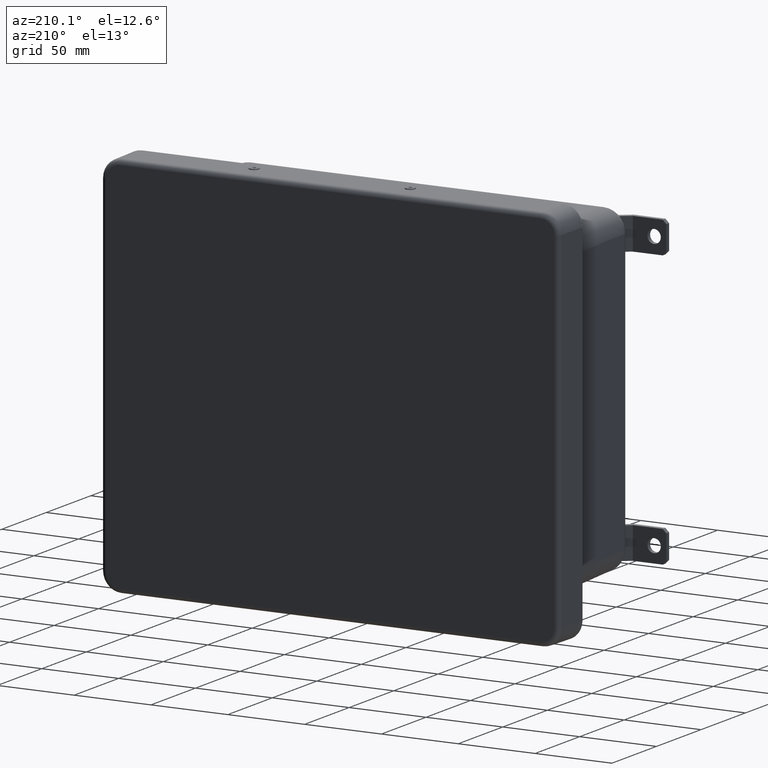
[diagram: clean part render]
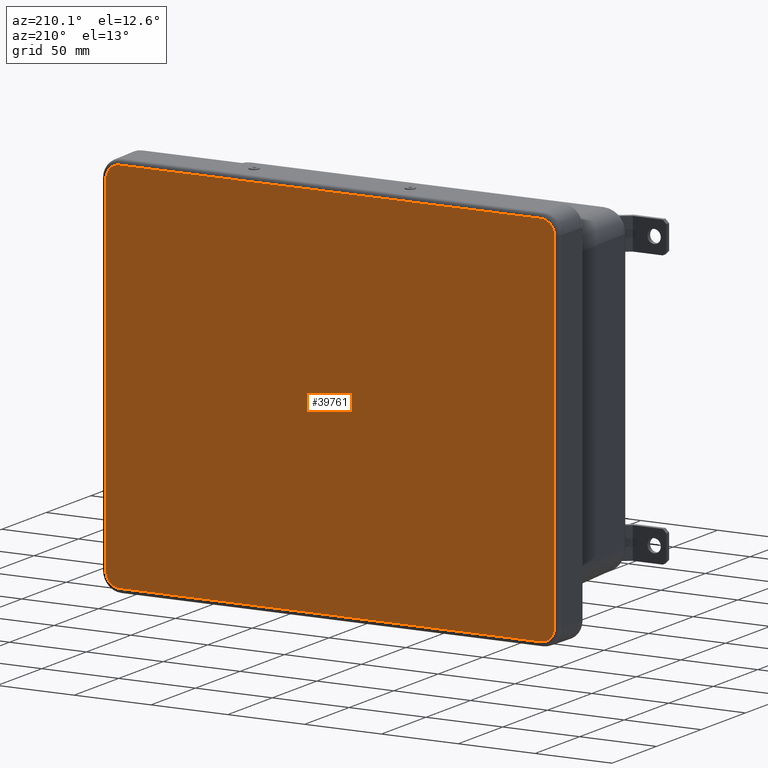
[diagram: same view with one face highlighted and labeled with its STEP entity id]
A machine part, auxiliary view. The second image highlights one B-rep face of the part: STEP entity #39761.
In plain terms, the highlighted planar face has unit normal (0, 1, 0).
Its self-contained STEP definition (entity closure, byte-faithful):
#2298 = CARTESIAN_POINT ( 'NONE',  ( -5.400000000000000400, 0.0000000000000000000, 4.808162842110538000 ) ) ;
#2363 = EDGE_CURVE ( 'NONE', #60219, #68938, #52238, .T. ) ;
#3055 = CARTESIAN_POINT ( 'NONE',  ( -5.746162842110538600, 0.0000000000000000000, 4.462000000000000600 ) ) ;
#4640 = CARTESIAN_POINT ( 'NONE',  ( 5.746162842110538600, 0.0000000000000000000, -4.462000000000000600 ) ) ;
#5407 = CARTESIAN_POINT ( 'NONE',  ( 5.400000000000002100, 0.0000000000000000000, 4.808162842110538900 ) ) ;
#6756 = AXIS2_PLACEMENT_3D ( 'NONE', #40407, #7581, #45902 ) ;
#6970 = CARTESIAN_POINT ( 'NONE',  ( -5.746162842110538600, 0.0000000000000000000, -4.462000000000000600 ) ) ;
#7581 = DIRECTION ( 'NONE',  ( 0.0000000000000000000, -1.000000000000000000, 0.0000000000000000000 ) ) ;
#7953 = CARTESIAN_POINT ( 'NONE',  ( 5.746162842110540400, 0.0000000000000000000, 4.462000000000000600 ) ) ;
#8036 = CIRCLE ( 'NONE', #42765, 0.3461628421105386000 ) ;
#10714 = EDGE_CURVE ( 'NONE', #21103, #52835, #48047, .T. ) ;
#14177 = DIRECTION ( 'NONE',  ( 1.000000000000000000, -0.0000000000000000000, 0.0000000000000000000 ) ) ;
#15979 = DIRECTION ( 'NONE',  ( 0.0000000000000000000, -1.000000000000000000, 0.0000000000000000000 ) ) ;
#16394 = AXIS2_PLACEMENT_3D ( 'NONE', #48860, #15979, #54395 ) ;
#17509 = VERTEX_POINT ( 'NONE', #36341 ) ;
#18717 = EDGE_CURVE ( 'NONE', #40219, #21103, #28015, .T. ) ;
#21103 = VERTEX_POINT ( 'NONE', #6970 ) ;
#21285 = ORIENTED_EDGE ( 'NONE', *, *, #10714, .T. ) ;
#22402 = EDGE_CURVE ( 'NONE', #54893, #60219, #62600, .T. ) ;
#22726 = CARTESIAN_POINT ( 'NONE',  ( 5.399999999999999500, 0.0000000000000000000, -4.462000000000000600 ) ) ;
#26622 = CARTESIAN_POINT ( 'NONE',  ( -5.400000000000002100, 0.0000000000000000000, -4.462000000000001500 ) ) ;
#26849 = EDGE_CURVE ( 'NONE', #36926, #54893, #64738, .T. ) ;
#27175 = CARTESIAN_POINT ( 'NONE',  ( -5.400000000000000400, 0.0000000000000000000, 4.461999999999999700 ) ) ;
#28015 = LINE ( 'NONE', #30564, #29738 ) ;
#28304 = DIRECTION ( 'NONE',  ( 0.0000000000000000000, 0.0000000000000000000, -1.000000000000000000 ) ) ;
#29373 = ORIENTED_EDGE ( 'NONE', *, *, #37140, .T. ) ;
#29738 = VECTOR ( 'NONE', #63397, 39.37007874015748100 ) ;
#30158 = VECTOR ( 'NONE', #56979, 39.37007874015748100 ) ;
#30564 = CARTESIAN_POINT ( 'NONE',  ( -5.746162842110538600, 0.0000000000000000000, -4.462000000000000600 ) ) ;
#32140 = DIRECTION ( 'NONE',  ( 0.0000000000000000000, 0.0000000000000000000, -1.000000000000000000 ) ) ;
#32696 = DIRECTION ( 'NONE',  ( 0.0000000000000000000, 0.0000000000000000000, -1.000000000000000000 ) ) ;
#33581 = LINE ( 'NONE', #2298, #30158 ) ;
#34414 = EDGE_LOOP ( 'NONE', ( #69960, #51654, #44207, #62892, #43879, #29373, #59207, #21285 ) ) ;
#34455 = FACE_OUTER_BOUND ( 'NONE', #34414, .T. ) ;
#35212 = EDGE_CURVE ( 'NONE', #52835, #36926, #57974, .T. ) ;
#36341 = CARTESIAN_POINT ( 'NONE',  ( -5.400000000000000400, 0.0000000000000000000, 4.808162842110538000 ) ) ;
#36926 = VERTEX_POINT ( 'NONE', #51429 ) ;
#37140 = EDGE_CURVE ( 'NONE', #17509, #40219, #8036, .T. ) ;
#39761 = ADVANCED_FACE ( 'NONE', ( #34455 ), #70316, .T. ) ;
#40219 = VERTEX_POINT ( 'NONE', #3055 ) ;
#40407 = CARTESIAN_POINT ( 'NONE',  ( 5.400000000000002100, 0.0000000000000000000, 4.462000000000000600 ) ) ;
#41528 = CARTESIAN_POINT ( 'NONE',  ( 5.399999999999999500, 0.0000000000000000000, -4.808162842110538900 ) ) ;
#42765 = AXIS2_PLACEMENT_3D ( 'NONE', #27175, #65525, #32696 ) ;
#43879 = ORIENTED_EDGE ( 'NONE', *, *, #57208, .T. ) ;
#44207 = ORIENTED_EDGE ( 'NONE', *, *, #22402, .T. ) ;
#44766 = AXIS2_PLACEMENT_3D ( 'NONE', #26622, #64986, #32140 ) ;
#45902 = DIRECTION ( 'NONE',  ( 0.0000000000000000000, 0.0000000000000000000, -1.000000000000000000 ) ) ;
#47995 = VECTOR ( 'NONE', #49153, 39.37007874015748100 ) ;
#48047 = CIRCLE ( 'NONE', #16394, 0.3461628421105380500 ) ;
#48860 = CARTESIAN_POINT ( 'NONE',  ( -5.400000000000002100, 0.0000000000000000000, -4.462000000000001500 ) ) ;
#49153 = DIRECTION ( 'NONE',  ( 0.0000000000000000000, 0.0000000000000000000, 1.000000000000000000 ) ) ;
#51429 = CARTESIAN_POINT ( 'NONE',  ( 5.399999999999999500, 0.0000000000000000000, -4.808162842110538900 ) ) ;
#51654 = ORIENTED_EDGE ( 'NONE', *, *, #26849, .T. ) ;
#52238 = CIRCLE ( 'NONE', #6756, 0.3461628421105374900 ) ;
#52835 = VERTEX_POINT ( 'NONE', #70614 ) ;
#54395 = DIRECTION ( 'NONE',  ( 0.0000000000000000000, 0.0000000000000000000, -1.000000000000000000 ) ) ;
#54893 = VERTEX_POINT ( 'NONE', #4640 ) ;
#56979 = DIRECTION ( 'NONE',  ( -1.000000000000000000, 0.0000000000000000000, 0.0000000000000000000 ) ) ;
#57208 = EDGE_CURVE ( 'NONE', #68938, #17509, #33581, .T. ) ;
#57974 = LINE ( 'NONE', #41528, #59684 ) ;
#59207 = ORIENTED_EDGE ( 'NONE', *, *, #18717, .T. ) ;
#59684 = VECTOR ( 'NONE', #14177, 39.37007874015748100 ) ;
#60219 = VERTEX_POINT ( 'NONE', #7953 ) ;
#61154 = DIRECTION ( 'NONE',  ( 0.0000000000000000000, -1.000000000000000000, 0.0000000000000000000 ) ) ;
#62600 = LINE ( 'NONE', #65463, #47995 ) ;
#62892 = ORIENTED_EDGE ( 'NONE', *, *, #2363, .T. ) ;
#63397 = DIRECTION ( 'NONE',  ( 0.0000000000000000000, 0.0000000000000000000, -1.000000000000000000 ) ) ;
#64738 = CIRCLE ( 'NONE', #71089, 0.3461628421105391600 ) ;
#64986 = DIRECTION ( 'NONE',  ( 0.0000000000000000000, -1.000000000000000000, 0.0000000000000000000 ) ) ;
#65463 = CARTESIAN_POINT ( 'NONE',  ( 5.746162842110538600, 0.0000000000000000000, 4.462000000000000600 ) ) ;
#65525 = DIRECTION ( 'NONE',  ( 0.0000000000000000000, -1.000000000000000000, 0.0000000000000000000 ) ) ;
#68938 = VERTEX_POINT ( 'NONE', #5407 ) ;
#69960 = ORIENTED_EDGE ( 'NONE', *, *, #35212, .T. ) ;
#70316 = PLANE ( 'NONE',  #44766 ) ;
#70614 = CARTESIAN_POINT ( 'NONE',  ( -5.400000000000002100, 0.0000000000000000000, -4.808162842110539800 ) ) ;
#71089 = AXIS2_PLACEMENT_3D ( 'NONE', #22726, #61154, #28304 ) ;